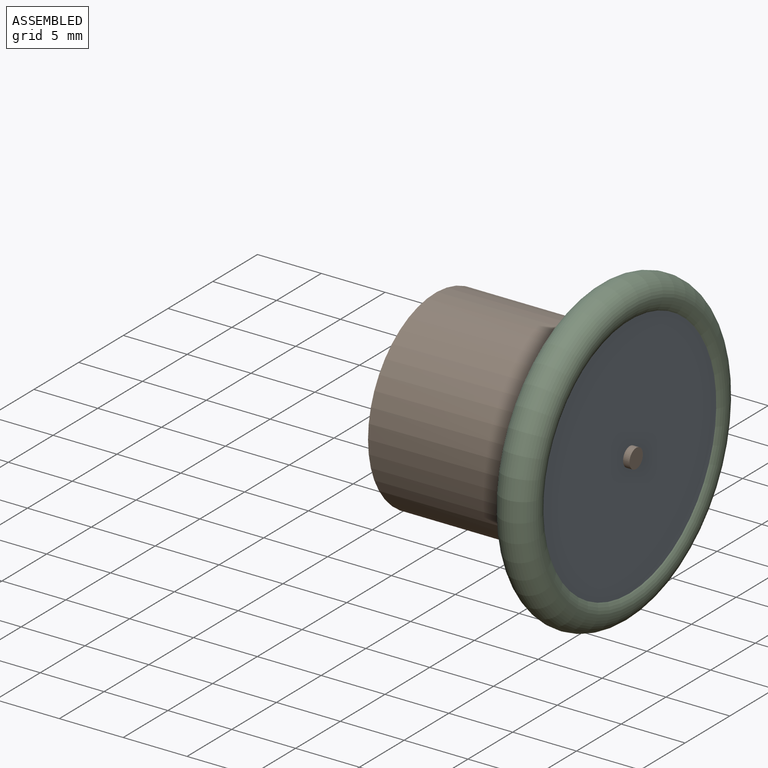
[diagram: assembled view]
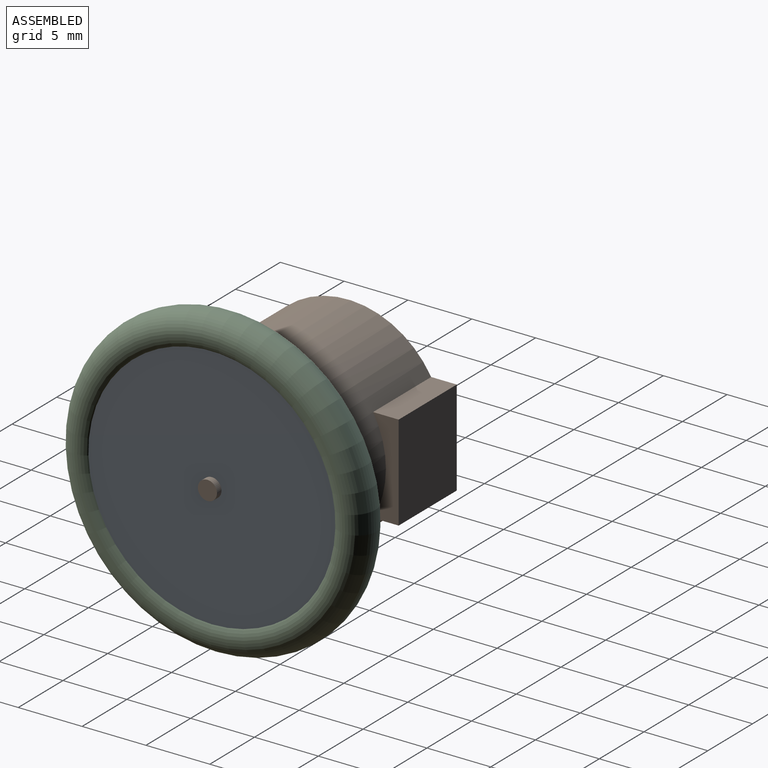
[diagram: assembled view, second angle]
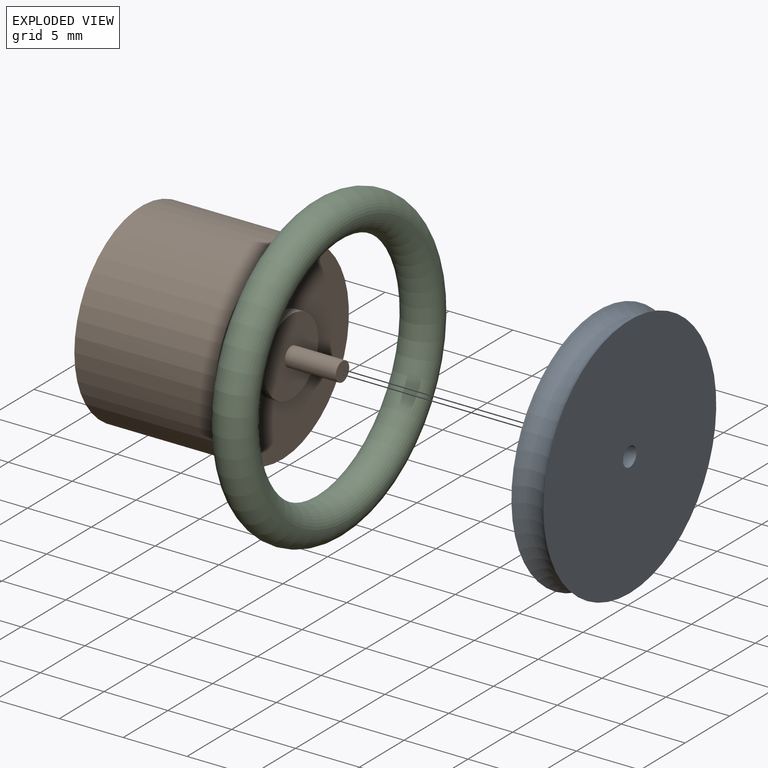
[diagram: exploded view]
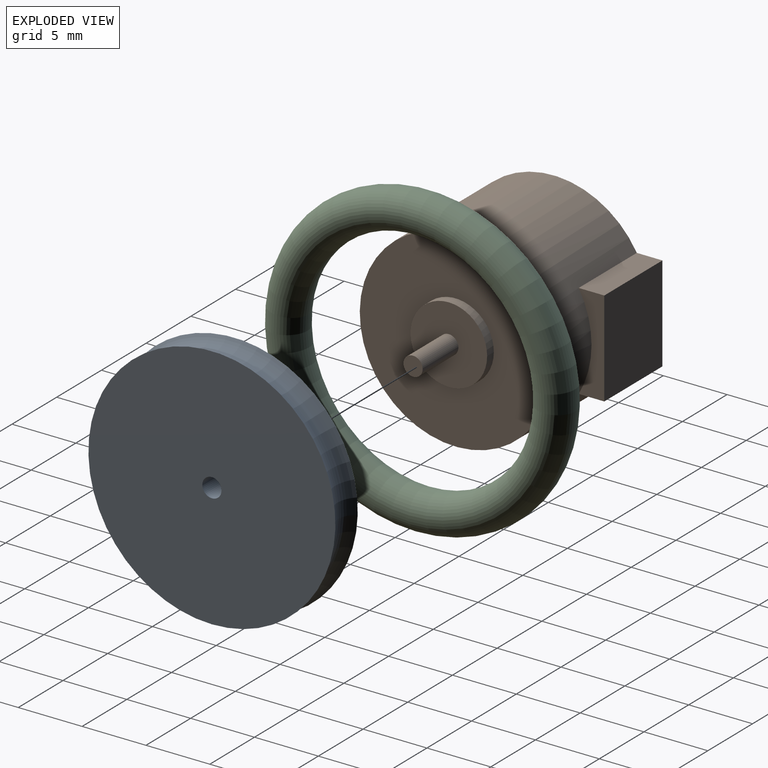
[diagram: exploded view, second angle]
ASSEMBLY  parts=3 mates=3
PART A: 4 faces, bbox 3x22.7x22.7 mm
  f0: cylinder r=0.75mm len=2.5mm, axis (1,0,0), area 11.8mm2, adj f1,f3
  f1: plane 19.34x19.34mm, normal (1,0,0), area 292.1mm2, adj f0,f2
  f2: torus R=10.5mm, axis (1,0,0), area 171.4mm2, adj f1,f3
  f3: plane 19.34x19.34mm, normal (-1,0,0), area 292.1mm2, adj f0,f2
PART B: 13 faces, bbox 15x16.5x16 mm
  f0: plane 6.5x2.01mm, normal (1,0,0), area 13mm2, adj f1,f3,f4,f5
  f1: plane 7.5x6.5mm, normal (0,0,1), area 48.7mm2, adj f0,f2,f4,f5
  f2: plane 6.5x2.01mm, normal (-1,0,0), area 13mm2, adj f1,f3,f4,f5
  f3: cylinder r=7.5mm len=15mm, axis (0,1,0), area 467.3mm2, adj f0,f2,f4,f5,f8
  f4: plane 16x15mm, normal (0,-1,0), area 158.4mm2, adj f0,f1,f2,f3,f6
  f5: plane 7.5x2.01mm, normal (0,1,0), area 9.9mm2, adj f0,f1,f2,f3
  f6: cylinder r=3mm len=6mm, axis (0,1,0), area 14.1mm2, adj f4,f7
  f7: plane 6x6mm, normal (0,-1,0), area 28.3mm2, adj f6
  f8: plane 15x15mm, normal (0,1,0), area 148.4mm2, adj f3,f10
  f9: plane 6x6mm, normal (0,1,0), area 26.5mm2, adj f10,f11
  f10: cylinder r=3mm len=6mm, axis (0,1,0), area 14.1mm2, adj f8,f9
  f11: cylinder r=0.75mm len=4mm, axis (0,-1,0), area 18.8mm2, adj f9,f12
  f12: plane 1.5x1.5mm, normal (0,1,0), area 1.8mm2, adj f11
PART C: 1 faces, bbox 3x26x26 mm
  f0: torus R=10.5mm, axis (1,0,0), area 621.8mm2
PLACE A t=(-3.63,-8.5,9.32)mm
PLACE B rot(axis=(-0.58,-0.58,-0.58),120deg) t=(-11.13,-8.5,9.32)mm
PLACE C t=(-3.63,-8.5,9.32)mm
MATE fastened A.f0 <-> C.f0  axis (1,0,0) through (-3.63,-8.5,9.32)mm
MATE planar B.f3 <-> A.f0  axis (1,0,0) through (-1.88,-8.5,9.32)mm
MATE cylindrical B.f3 <-> A.f0  axis (-1,0,0) through (-3.88,-8.5,9.32)mm
